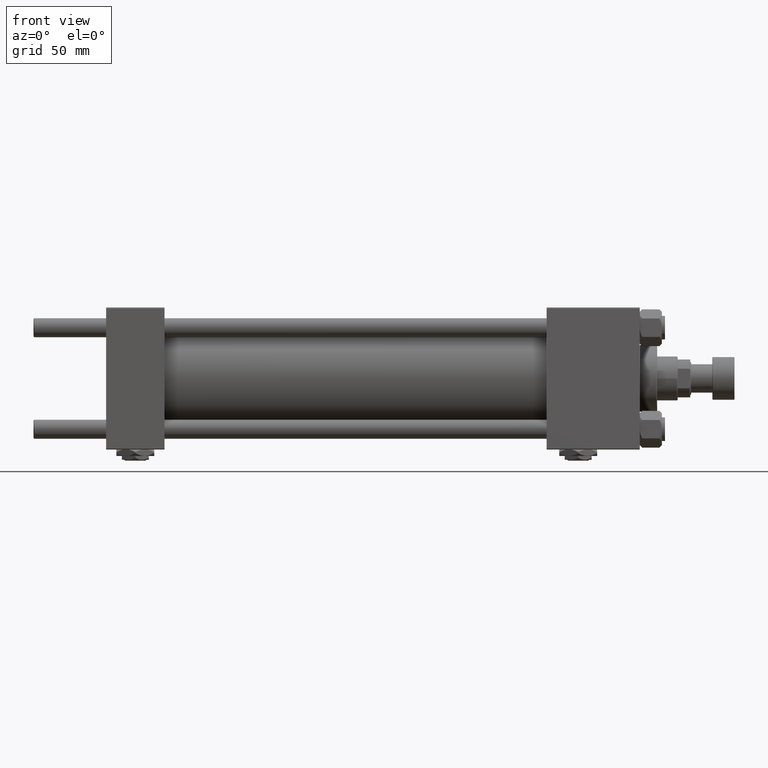
[diagram: clean part render]
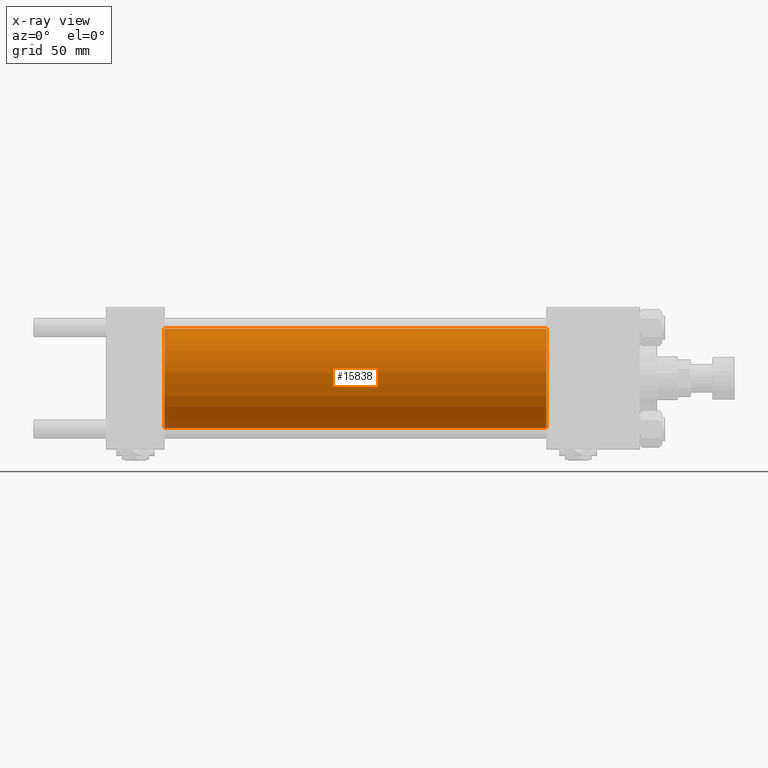
[diagram: x-ray — body ghosted, one internal face saturated and labeled with its STEP entity id]
A machine part, front view, then the same camera in x-ray: the body is ghosted and one INTERNAL B-rep face — a face not visible from any outside direction — is saturated and labeled: STEP entity #15838.
In plain terms, the highlighted cylindrical surface (partial cylindrical patch) has radius 31.5 mm, axis along (-1, -0, -0).
Its self-contained STEP definition (entity closure, byte-faithful):
#1603 = ORIENTED_EDGE ( 'NONE', *, *, #49802, .T. ) ;
#2366 = LINE ( 'NONE', #26963, #9818 ) ;
#3417 = DIRECTION ( 'NONE',  ( -1.000000000000000000, -0.000000000000000000, -0.000000000000000000 ) ) ;
#5539 = CIRCLE ( 'NONE', #31777, 31.50000000000000000 ) ;
#5854 = ORIENTED_EDGE ( 'NONE', *, *, #24679, .F. ) ;
#9818 = VECTOR ( 'NONE', #3417, 1000.000000000000000 ) ;
#10004 = CIRCLE ( 'NONE', #36203, 31.50000000000000000 ) ;
#10302 = DIRECTION ( 'NONE',  ( 0.000000000000000000, 0.000000000000000000, -1.000000000000000000 ) ) ;
#13936 = AXIS2_PLACEMENT_3D ( 'NONE', #50768, #35171, #38871 ) ;
#14903 = ORIENTED_EDGE ( 'NONE', *, *, #27375, .F. ) ;
#15838 = ADVANCED_FACE ( 'NONE', ( #39937 ), #22729, .F. ) ;
#19952 = CARTESIAN_POINT ( 'NONE',  ( 278.9999999999999432, 0.000000000000000000, 31.50000000000000000 ) ) ;
#20731 = LINE ( 'NONE', #19952, #41200 ) ;
#21735 = CARTESIAN_POINT ( 'NONE',  ( 37.00000000000000000, 0.000000000000000000, 0.000000000000000000 ) ) ;
#21983 = EDGE_CURVE ( 'NONE', #44005, #46986, #2366, .T. ) ;
#22729 = CYLINDRICAL_SURFACE ( 'NONE', #13936, 31.50000000000000000 ) ;
#24679 = EDGE_CURVE ( 'NONE', #46327, #25396, #20731, .T. ) ;
#25013 = ORIENTED_EDGE ( 'NONE', *, *, #21983, .T. ) ;
#25396 = VERTEX_POINT ( 'NONE', #30913 ) ;
#25679 = CARTESIAN_POINT ( 'NONE',  ( 278.9999999999999432, 0.000000000000000000, 0.000000000000000000 ) ) ;
#26963 = CARTESIAN_POINT ( 'NONE',  ( 278.9999999999999432, 3.857637417314162689E-15, -31.50000000000000000 ) ) ;
#27375 = EDGE_CURVE ( 'NONE', #25396, #46986, #10004, .T. ) ;
#30913 = CARTESIAN_POINT ( 'NONE',  ( 37.00000000000000000, 0.000000000000000000, 31.50000000000000000 ) ) ;
#31777 = AXIS2_PLACEMENT_3D ( 'NONE', #25679, #37844, #10302 ) ;
#35171 = DIRECTION ( 'NONE',  ( -1.000000000000000000, -0.000000000000000000, -0.000000000000000000 ) ) ;
#36203 = AXIS2_PLACEMENT_3D ( 'NONE', #21735, #38382, #50545 ) ;
#37844 = DIRECTION ( 'NONE',  ( 1.000000000000000000, 0.000000000000000000, 0.000000000000000000 ) ) ;
#38382 = DIRECTION ( 'NONE',  ( 1.000000000000000000, 0.000000000000000000, 0.000000000000000000 ) ) ;
#38550 = CARTESIAN_POINT ( 'NONE',  ( 37.00000000000000000, 3.857637417314162689E-15, -31.50000000000000000 ) ) ;
#38871 = DIRECTION ( 'NONE',  ( 0.000000000000000000, 0.000000000000000000, 1.000000000000000000 ) ) ;
#39937 = FACE_OUTER_BOUND ( 'NONE', #46741, .T. ) ;
#40067 = DIRECTION ( 'NONE',  ( -1.000000000000000000, -0.000000000000000000, -0.000000000000000000 ) ) ;
#41200 = VECTOR ( 'NONE', #40067, 1000.000000000000000 ) ;
#42221 = CARTESIAN_POINT ( 'NONE',  ( 278.9999999999999432, 3.857637417314162689E-15, -31.50000000000000000 ) ) ;
#43968 = CARTESIAN_POINT ( 'NONE',  ( 278.9999999999999432, 0.000000000000000000, 31.50000000000000000 ) ) ;
#44005 = VERTEX_POINT ( 'NONE', #42221 ) ;
#46327 = VERTEX_POINT ( 'NONE', #43968 ) ;
#46741 = EDGE_LOOP ( 'NONE', ( #1603, #25013, #14903, #5854 ) ) ;
#46986 = VERTEX_POINT ( 'NONE', #38550 ) ;
#49802 = EDGE_CURVE ( 'NONE', #46327, #44005, #5539, .T. ) ;
#50545 = DIRECTION ( 'NONE',  ( 0.000000000000000000, 0.000000000000000000, -1.000000000000000000 ) ) ;
#50768 = CARTESIAN_POINT ( 'NONE',  ( 278.9999999999999432, 0.000000000000000000, 0.000000000000000000 ) ) ;